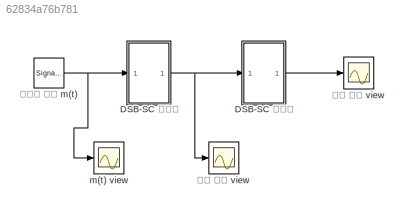
MODEL slx_62834a76b781
KIND model
CONFIG AbsTol = auto
CONFIG EnableMultiTasking = off
CONFIG FixedStep = auto
CONFIG MaxStep = auto
CONFIG MinStep = auto
CONFIG RelTol = 1e-3
CONFIG SampleTimeConstraint = Unconstrained
CONFIG Solver = VariableStepAuto
CONFIG SolverName = VariableStepAuto
CONFIG StartTime = 0.0
CONFIG StopTime = 10.0
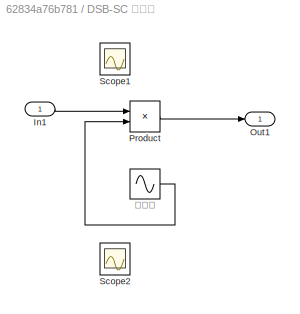
BLOCK [SubSystem] DSB-SC 변조기
  Ports = [1, 1]
  RequestExecContextInheritance = off
  Variant = off
BLOCK [Inport] DSB-SC 변조기/In1
  IconDisplay = Port number
BLOCK [Outport] DSB-SC 변조기/Out1
  IconDisplay = Port number
BLOCK [Product] DSB-SC 변조기/Product
  InputSameDT = off
  OutDataTypeStr = Inherit: Inherit via internal rule
  Ports = [2, 1]
  RndMeth = Floor
  SaturateOnIntegerOverflow = off
BLOCK [Scope] DSB-SC 변조기/Scope1
  NumInputPorts = 1
  Ports = [1]
  ScopeSpecificationString = Simulink.scopes.TimeScopeBlockCfg('CurrentConfiguration', extmgr.ConfigurationSet(extmgr.Configuration('Core','General UI',true),extmgr.Configuration('Core','Source UI',true),extmgr.Configuration('Sources','WiredSimulink',true,'DataLoggingVariableName','ScopeData1'),extmgr.Configuration('Visuals','Time Domain',true,'SerializedDisplays',{struct('MinYLimReal','-1.00000','MaxYLimReal','1.00000','YLab...<+1410ch>
BLOCK [Scope] DSB-SC 변조기/Scope2
  NumInputPorts = 1
  Ports = [1]
  ScopeSpecificationString = Simulink.scopes.TimeScopeBlockCfg('CurrentConfiguration', extmgr.ConfigurationSet(extmgr.Configuration('Core','General UI',true),extmgr.Configuration('Core','Source UI',true),extmgr.Configuration('Sources','WiredSimulink',true,'DataLoggingVariableName','ScopeData2'),extmgr.Configuration('Visuals','Time Domain',true,'SerializedDisplays',{struct('MinYLimReal','-1.00000','MaxYLimReal','1.00000','YLab...<+1423ch>
BLOCK [Sin] DSB-SC 변조기/반송파
  Frequency = 2*pi
  Phase = pi/2
  Ports = [0, 1]
  SampleTime = 0
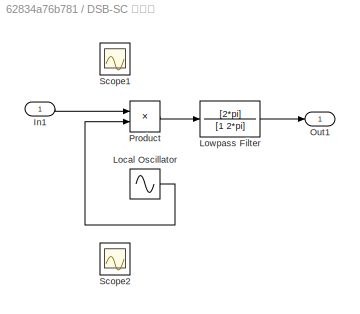
BLOCK [SubSystem] DSB-SC 복조기
  Ports = [1, 1]
  RequestExecContextInheritance = off
  Variant = off
BLOCK [Inport] DSB-SC 복조기/In1
  IconDisplay = Port number
BLOCK [Sin] DSB-SC 복조기/Local Oscillator
  Frequency = 2*pi
  Phase = pi/2
  Ports = [0, 1]
  SampleTime = 0
BLOCK [TransferFcn] DSB-SC 복조기/Lowpass Filter
  Denominator = [1 2*pi]
  Numerator = [2*pi]
BLOCK [Outport] DSB-SC 복조기/Out1
  IconDisplay = Port number
BLOCK [Product] DSB-SC 복조기/Product
  InputSameDT = off
  OutDataTypeStr = Inherit: Inherit via internal rule
  Ports = [2, 1]
  RndMeth = Floor
  SaturateOnIntegerOverflow = off
BLOCK [Scope] DSB-SC 복조기/Scope1
  NumInputPorts = 1
  Ports = [1]
  ScopeSpecificationString = Simulink.scopes.TimeScopeBlockCfg('CurrentConfiguration', extmgr.ConfigurationSet(extmgr.Configuration('Core','General UI',true),extmgr.Configuration('Core','Source UI',true),extmgr.Configuration('Sources','WiredSimulink',true,'DataLoggingVariableName','ScopeData1'),extmgr.Configuration('Visuals','Time Domain',true,'SerializedDisplays',{struct('MinYLimReal','-1.00000','MaxYLimReal','1.00000','YLab...<+1410ch>
BLOCK [Scope] DSB-SC 복조기/Scope2
  NumInputPorts = 1
  Ports = [1]
  ScopeSpecificationString = Simulink.scopes.TimeScopeBlockCfg('CurrentConfiguration', extmgr.ConfigurationSet(extmgr.Configuration('Core','General UI',true),extmgr.Configuration('Core','Source UI',true),extmgr.Configuration('Sources','WiredSimulink',true,'DataLoggingVariableName','ScopeData2'),extmgr.Configuration('Visuals','Time Domain',true,'SerializedDisplays',{struct('MinYLimReal','-1.00000','MaxYLimReal','1.00000','YLab...<+1397ch>
BLOCK [Scope] m(t) view
  NumInputPorts = 1
  Ports = [1]
  ScopeSpecificationString = Simulink.scopes.TimeScopeBlockCfg('CurrentConfiguration', extmgr.ConfigurationSet(extmgr.Configuration('Core','General UI',true),extmgr.Configuration('Core','Source UI',true),extmgr.Configuration('Sources','WiredSimulink',true,'DataLoggingVariableName','ScopeData3'),extmgr.Configuration('Visuals','Time Domain',true,'SerializedDisplays',{struct('MinYLimReal','-1.25','MaxYLimReal','1.25','YLabelReal...<+1407ch>
BLOCK [SignalGenerator] 메시지 신호 m(t)
  Ports = [0, 1]
  Units = rad/sec
  WaveForm = square
BLOCK [Scope] 변조 신호 view
  NumInputPorts = 1
  Ports = [1]
  ScopeSpecificationString = Simulink.scopes.TimeScopeBlockCfg('CurrentConfiguration', extmgr.ConfigurationSet(extmgr.Configuration('Core','General UI',true),extmgr.Configuration('Core','Source UI',true),extmgr.Configuration('Sources','WiredSimulink',true),extmgr.Configuration('Visuals','Time Domain',true,'SerializedDisplays',{struct('MinYLimReal','-1.25','MaxYLimReal','1.25','YLabelReal','','MinYLimMag','0.00000','MaxYLimMag...<+1367ch>
BLOCK [Scope] 복조 신호 view
  NumInputPorts = 1
  Ports = [1]
  ScopeSpecificationString = Simulink.scopes.TimeScopeBlockCfg('CurrentConfiguration', extmgr.ConfigurationSet(extmgr.Configuration('Core','General UI',true),extmgr.Configuration('Core','Source UI',true),extmgr.Configuration('Sources','WiredSimulink',true,'DataLoggingVariableName','ScopeData4'),extmgr.Configuration('Visuals','Time Domain',true,'SerializedDisplays',{struct('MinYLimReal','-0.7063','MaxYLimReal','0.69472','YLabe...<+1420ch>
LINE DSB-SC 변조기/In1:1 -> DSB-SC 변조기/Product:1
LINE DSB-SC 변조기/Product:1 -> DSB-SC 변조기/Out1:1
LINE DSB-SC 변조기/반송파:1 -> DSB-SC 변조기/Product:2
NET DSB-SC 변조기:1 -> DSB-SC 복조기:1, 변조 신호 view:1
LINE DSB-SC 복조기/In1:1 -> DSB-SC 복조기/Product:1
LINE DSB-SC 복조기/Local Oscillator:1 -> DSB-SC 복조기/Product:2
LINE DSB-SC 복조기/Lowpass Filter:1 -> DSB-SC 복조기/Out1:1
LINE DSB-SC 복조기/Product:1 -> DSB-SC 복조기/Lowpass Filter:1
LINE DSB-SC 복조기:1 -> 복조 신호 view:1
NET 메시지 신호 m(t):1 -> DSB-SC 변조기:1, m(t) view:1
note: NET lines group one-source signal fan-out (src -> all destinations, sorted); 1:1 wires keep LINE
